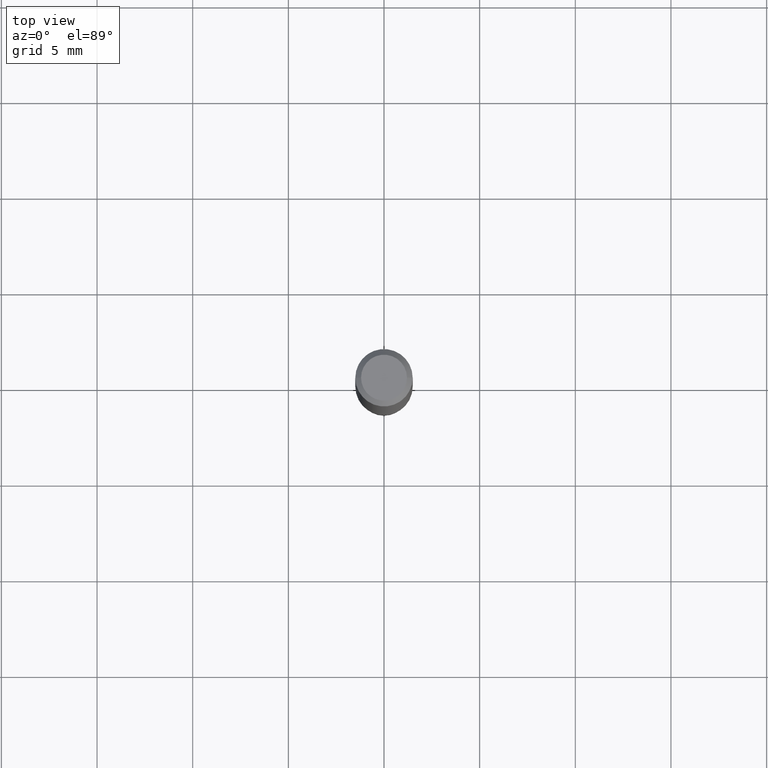
[diagram: clean part render]
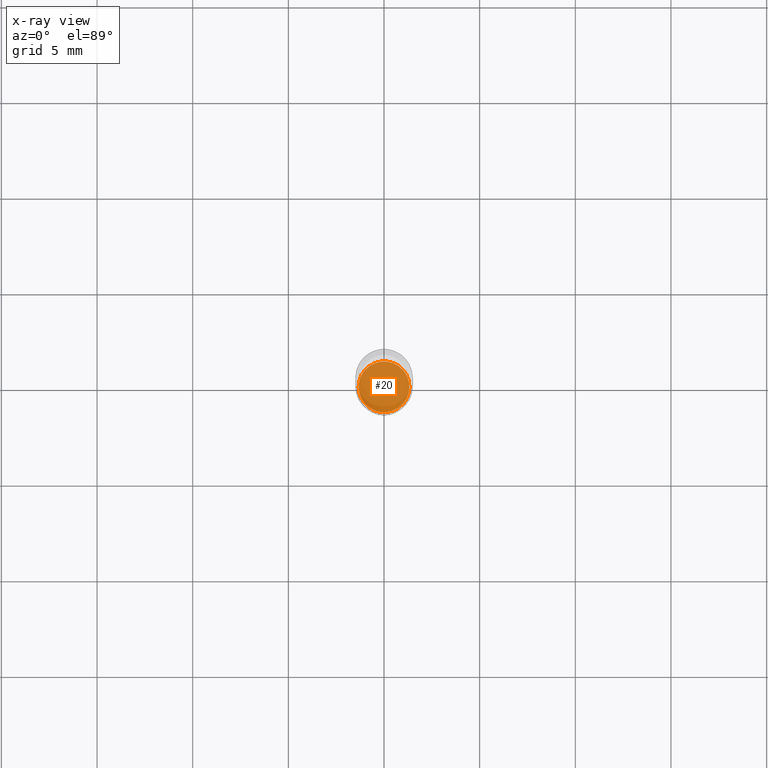
[diagram: x-ray — body ghosted, one internal face saturated and labeled with its STEP entity id]
A machine part, top view, then the same camera in x-ray: the body is ghosted and one INTERNAL B-rep face — a face not visible from any outside direction — is saturated and labeled: STEP entity #20.
In plain terms, the highlighted planar face has unit normal (-0, 0, 1).
Its self-contained STEP definition (entity closure, byte-faithful):
#19 = DIRECTION ( 'NONE',  ( -2.445468806185136597E-29, 3.491481338843145583E-15, 1.000000000000000000 ) ) ;
#20 = ADVANCED_FACE ( 'NONE', ( #416 ), #484, .F. ) ;
#47 = AXIS2_PLACEMENT_3D ( 'NONE', #152, #120, #72 ) ;
#53 = ORIENTED_EDGE ( 'NONE', *, *, #243, .F. ) ;
#60 = CARTESIAN_POINT ( 'NONE',  ( 2.676565608369631234E-29, -3.821426325363821984E-15, -1.094499999999999806 ) ) ;
#66 = DIRECTION ( 'NONE',  ( -2.445468806185136597E-29, 3.491481338843145583E-15, 1.000000000000000000 ) ) ;
#72 = DIRECTION ( 'NONE',  ( 1.000000000000000000, -6.982962677686265922E-15, 4.876176775795935793E-29 ) ) ;
#99 = DIRECTION ( 'NONE',  ( 1.000000000000000000, -6.982962677686264344E-15, 0.000000000000000000 ) ) ;
#120 = DIRECTION ( 'NONE',  ( -2.438088387897960049E-29, 3.491481338843145188E-15, 1.000000000000000000 ) ) ;
#143 = CARTESIAN_POINT ( 'NONE',  ( 2.676565608369631234E-29, -3.821426325363821984E-15, -1.094499999999999806 ) ) ;
#152 = CARTESIAN_POINT ( 'NONE',  ( 4.674566726050190474E-29, -9.601750056838835032E-16, -1.094499999999999806 ) ) ;
#182 = CARTESIAN_POINT ( 'NONE',  ( 0.05224999999999999090, -4.186286125272929641E-15, -1.094499999999999806 ) ) ;
#197 = ORIENTED_EDGE ( 'NONE', *, *, #342, .F. ) ;
#200 = VERTEX_POINT ( 'NONE', #318 ) ;
#243 = EDGE_CURVE ( 'NONE', #433, #200, #327, .T. ) ;
#283 = AXIS2_PLACEMENT_3D ( 'NONE', #143, #66, #99 ) ;
#302 = AXIS2_PLACEMENT_3D ( 'NONE', #60, #19, #398 ) ;
#318 = CARTESIAN_POINT ( 'NONE',  ( -0.05224999999999999090, -3.447518518755059093E-15, -1.094499999999999806 ) ) ;
#327 = CIRCLE ( 'NONE', #283, 0.05224999999999999090 ) ;
#332 = EDGE_LOOP ( 'NONE', ( #53, #197 ) ) ;
#342 = EDGE_CURVE ( 'NONE', #200, #433, #378, .T. ) ;
#378 = CIRCLE ( 'NONE', #302, 0.05224999999999999090 ) ;
#398 = DIRECTION ( 'NONE',  ( 1.000000000000000000, -6.982962677686264344E-15, 0.000000000000000000 ) ) ;
#416 = FACE_OUTER_BOUND ( 'NONE', #332, .T. ) ;
#433 = VERTEX_POINT ( 'NONE', #182 ) ;
#484 = PLANE ( 'NONE',  #47 ) ;